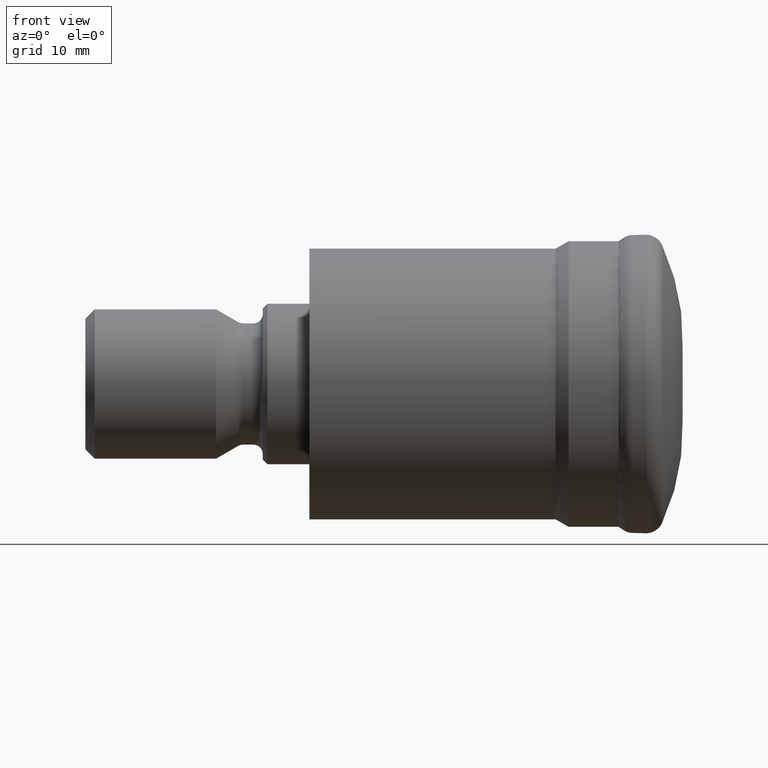
[diagram: clean part render]
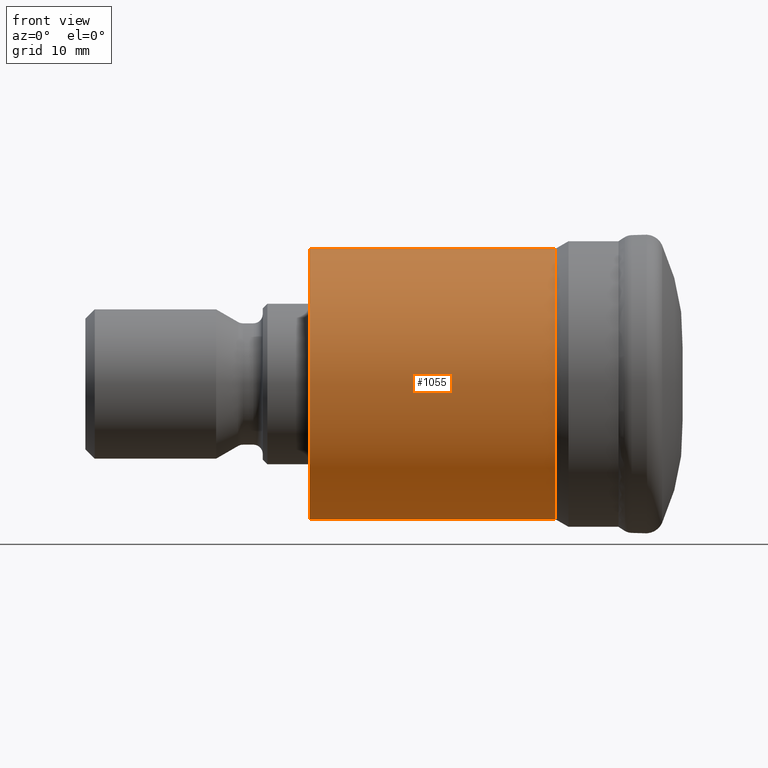
[diagram: same view with one face highlighted and labeled with its STEP entity id]
A machine part, front view. The second image highlights one B-rep face of the part: STEP entity #1055.
In plain terms, the highlighted cylindrical surface (partial cylindrical patch) has radius 14.5 mm, axis along (1, -0, -0).
Its self-contained STEP definition (entity closure, byte-faithful):
#21 = CARTESIAN_POINT ( 'NONE',  ( 0.0000000000000000000, 0.0000000000000000000, 0.0000000000000000000 ) ) ;
#28 = DIRECTION ( 'NONE',  ( 1.000000000000000000, -0.0000000000000000000, -0.0000000000000000000 ) ) ;
#42 = DIRECTION ( 'NONE',  ( 0.0000000000000000000, 0.0000000000000000000, -1.000000000000000000 ) ) ;
#156 = LINE ( 'NONE', #911, #196 ) ;
#180 = CIRCLE ( 'NONE', #543, 14.49999999999999800 ) ;
#196 = VECTOR ( 'NONE', #893, 1000.000000000000000 ) ;
#266 = ORIENTED_EDGE ( 'NONE', *, *, #576, .T. ) ;
#268 = ORIENTED_EDGE ( 'NONE', *, *, #513, .T. ) ;
#293 = ORIENTED_EDGE ( 'NONE', *, *, #555, .F. ) ;
#298 = ORIENTED_EDGE ( 'NONE', *, *, #418, .F. ) ;
#317 = CIRCLE ( 'NONE', #468, 14.49999999999999500 ) ;
#358 = VECTOR ( 'NONE', #672, 1000.000000000000000 ) ;
#374 = LINE ( 'NONE', #990, #358 ) ;
#414 = AXIS2_PLACEMENT_3D ( 'NONE', #21, #28, #42 ) ;
#418 = EDGE_CURVE ( 'NONE', #870, #679, #374, .T. ) ;
#468 = AXIS2_PLACEMENT_3D ( 'NONE', #769, #774, #765 ) ;
#513 = EDGE_CURVE ( 'NONE', #870, #875, #317, .T. ) ;
#543 = AXIS2_PLACEMENT_3D ( 'NONE', #826, #945, #1015 ) ;
#555 = EDGE_CURVE ( 'NONE', #679, #868, #180, .T. ) ;
#576 = EDGE_CURVE ( 'NONE', #875, #868, #156, .T. ) ;
#594 = EDGE_LOOP ( 'NONE', ( #298, #268, #266, #293 ) ) ;
#672 = DIRECTION ( 'NONE',  ( 1.000000000000000000, -0.0000000000000000000, -0.0000000000000000000 ) ) ;
#679 = VERTEX_POINT ( 'NONE', #958 ) ;
#765 = DIRECTION ( 'NONE',  ( 0.0000000000000000000, 0.0000000000000000000, -1.000000000000000000 ) ) ;
#769 = CARTESIAN_POINT ( 'NONE',  ( -38.85999999999999900, 0.0000000000000000000, 0.0000000000000000000 ) ) ;
#774 = DIRECTION ( 'NONE',  ( 1.000000000000000000, -0.0000000000000000000, -0.0000000000000000000 ) ) ;
#798 = CARTESIAN_POINT ( 'NONE',  ( -12.48564064605510300, 0.0000000000000000000, -14.49999999999999800 ) ) ;
#802 = CARTESIAN_POINT ( 'NONE',  ( -38.85999999999999900, 1.775737858763661600E-015, 14.49999999999999500 ) ) ;
#813 = CARTESIAN_POINT ( 'NONE',  ( -38.85999999999999900, 0.0000000000000000000, -14.49999999999999500 ) ) ;
#826 = CARTESIAN_POINT ( 'NONE',  ( -12.48564064605510300, 0.0000000000000000000, 0.0000000000000000000 ) ) ;
#868 = VERTEX_POINT ( 'NONE', #798 ) ;
#870 = VERTEX_POINT ( 'NONE', #802 ) ;
#875 = VERTEX_POINT ( 'NONE', #813 ) ;
#893 = DIRECTION ( 'NONE',  ( 1.000000000000000000, -0.0000000000000000000, -0.0000000000000000000 ) ) ;
#911 = CARTESIAN_POINT ( 'NONE',  ( 0.0000000000000000000, 0.0000000000000000000, -14.49999999999999600 ) ) ;
#945 = DIRECTION ( 'NONE',  ( 1.000000000000000000, -0.0000000000000000000, -0.0000000000000000000 ) ) ;
#958 = CARTESIAN_POINT ( 'NONE',  ( -12.48564064605510300, 1.775737858763662000E-015, 14.50000000000000000 ) ) ;
#990 = CARTESIAN_POINT ( 'NONE',  ( 0.0000000000000000000, 1.775737858763661600E-015, 14.49999999999999600 ) ) ;
#1015 = DIRECTION ( 'NONE',  ( 0.0000000000000000000, 0.0000000000000000000, -1.000000000000000000 ) ) ;
#1055 = ADVANCED_FACE ( 'NONE', ( #1105 ), #1131, .T. ) ;
#1105 = FACE_OUTER_BOUND ( 'NONE', #594, .T. ) ;
#1131 = CYLINDRICAL_SURFACE ( 'NONE', #414, 14.49999999999999600 ) ;